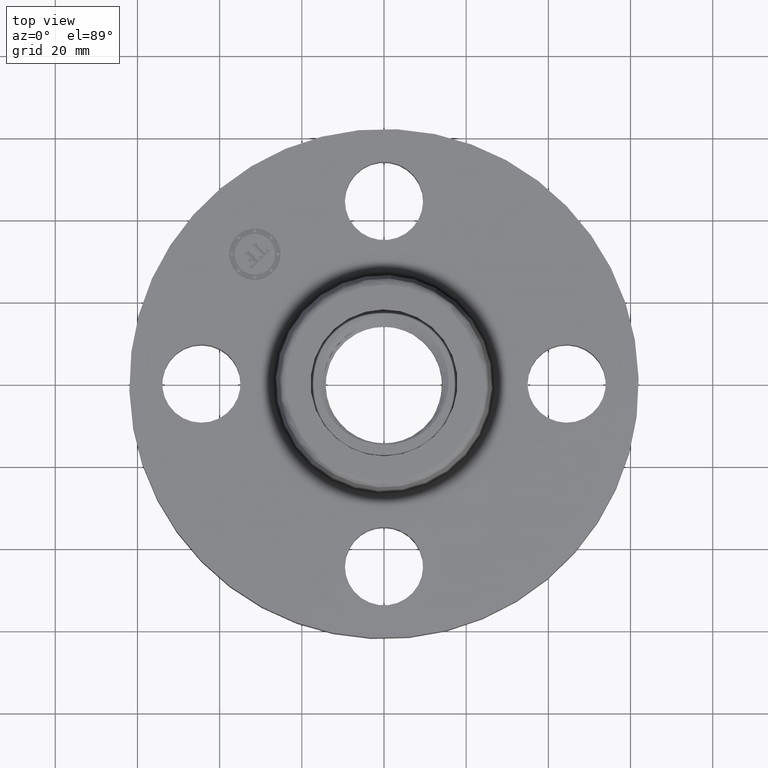
[diagram: clean part render]
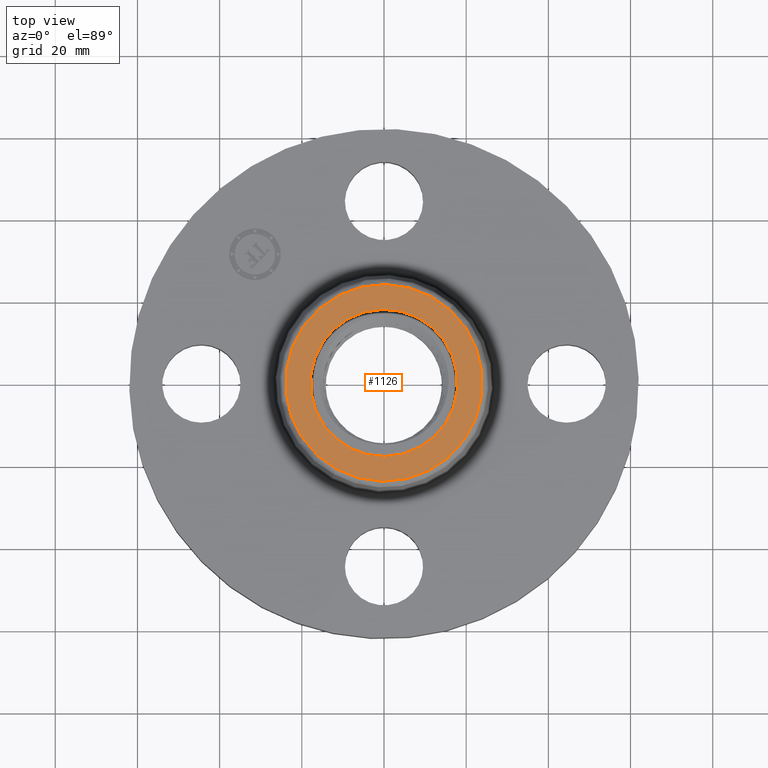
[diagram: same view with one face highlighted and labeled with its STEP entity id]
A machine part, top view. The second image highlights one B-rep face of the part: STEP entity #1126.
In plain terms, the highlighted planar face has unit normal (0, 0, -1).
Its self-contained STEP definition (entity closure, byte-faithful):
#302=AXIS2_PLACEMENT_3D('Circle Axis2P3D',#300,#301,$) ;
#328=AXIS2_PLACEMENT_3D('Circle Axis2P3D',#326,#327,$) ;
#725=AXIS2_PLACEMENT_3D('Circle Axis2P3D',#723,#724,$) ;
#749=AXIS2_PLACEMENT_3D('Circle Axis2P3D',#747,#748,$) ;
#1116=AXIS2_PLACEMENT_3D('Plane Axis2P3D',#1113,#1114,#1115) ;
#300=CARTESIAN_POINT('Axis2P3D Location',(0.,0.,1.)) ;
#304=CARTESIAN_POINT('Vertex',(0.337995004717,-0.618695706135,1.)) ;
#306=CARTESIAN_POINT('Vertex',(-0.337995004717,0.618695706135,1.)) ;
#326=CARTESIAN_POINT('Axis2P3D Location',(0.,0.,1.)) ;
#720=CARTESIAN_POINT('Vertex',(-0.45193037344,-0.827252999652,1.)) ;
#723=CARTESIAN_POINT('Axis2P3D Location',(0.,0.,1.)) ;
#727=CARTESIAN_POINT('Vertex',(0.45193037344,0.827252999652,1.)) ;
#747=CARTESIAN_POINT('Axis2P3D Location',(0.,0.,1.)) ;
#1113=CARTESIAN_POINT('Axis2P3D Location',(0.,0.942649769464,1.)) ;
#301=DIRECTION('Axis2P3D Direction',(0.,0.,0.0393700787402)) ;
#327=DIRECTION('Axis2P3D Direction',(0.,0.,0.0393700787402)) ;
#724=DIRECTION('Axis2P3D Direction',(0.,0.,-0.0393700787402)) ;
#748=DIRECTION('Axis2P3D Direction',(0.,0.,-0.0393700787402)) ;
#1114=DIRECTION('Axis2P3D Direction',(0.,0.,-0.0393700787402)) ;
#1115=DIRECTION('Axis2P3D XDirection',(0.0393700787402,0.,0.)) ;
#1119=ORIENTED_EDGE('',*,*,#751,.F.) ;
#1120=ORIENTED_EDGE('',*,*,#729,.F.) ;
#1123=ORIENTED_EDGE('',*,*,#330,.T.) ;
#1124=ORIENTED_EDGE('',*,*,#308,.T.) ;
#1125=FACE_BOUND('',#1122,.T.) ;
#1126=ADVANCED_FACE('PartBody',(#1121,#1125),#1117,.F.) ;
#303=CIRCLE('generated circle',#302,0.705000000003) ;
#329=CIRCLE('generated circle',#328,0.705000000003) ;
#726=CIRCLE('generated circle',#725,0.942649769464) ;
#750=CIRCLE('generated circle',#749,0.942649769464) ;
#308=EDGE_CURVE('',#305,#307,#303,.F.) ;
#330=EDGE_CURVE('',#307,#305,#329,.F.) ;
#729=EDGE_CURVE('',#721,#728,#726,.T.) ;
#751=EDGE_CURVE('',#728,#721,#750,.T.) ;
#1118=EDGE_LOOP('',(#1119,#1120)) ;
#1122=EDGE_LOOP('',(#1123,#1124)) ;
#1121=FACE_OUTER_BOUND('',#1118,.T.) ;
#1117=PLANE('',#1116) ;
#305=VERTEX_POINT('',#304) ;
#307=VERTEX_POINT('',#306) ;
#721=VERTEX_POINT('',#720) ;
#728=VERTEX_POINT('',#727) ;